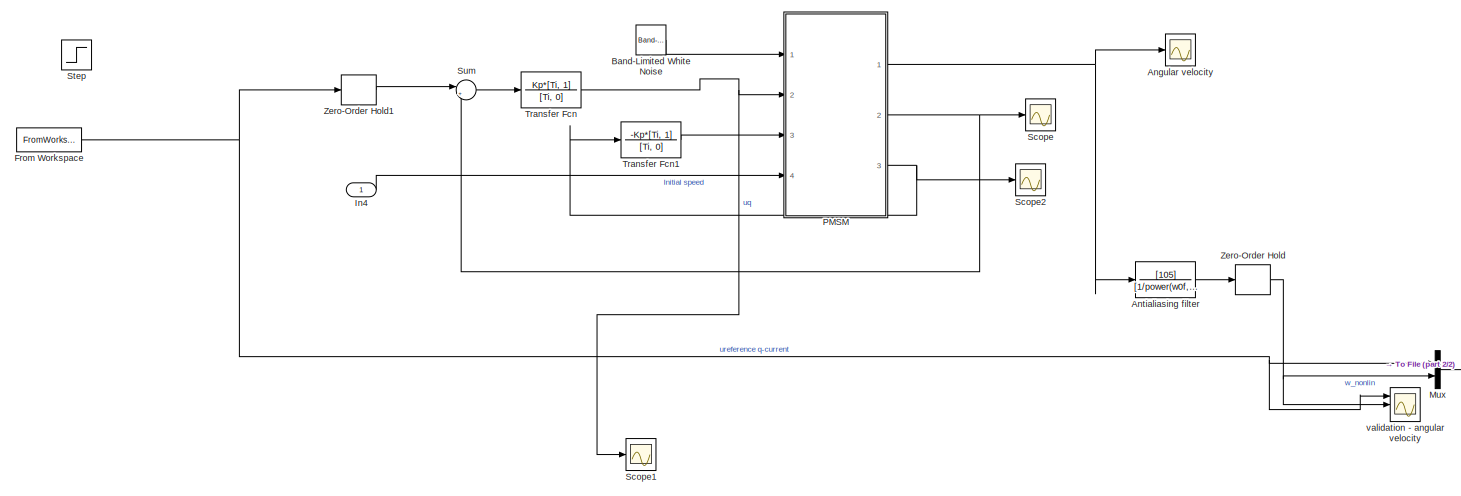
[diagram: root canvas - part 1/2, most of the canvas]
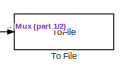
[diagram: root canvas - part 2/2, bottom right region]
MODEL slx_8caa76da7b3e
KIND model
CONFIG AbsTol = auto
CONFIG EnableMultiTasking = off
CONFIG FixedStep = auto
CONFIG MaxStep = auto
CONFIG MinStep = auto
CONFIG RelTol = 1e-3
CONFIG SampleTimeConstraint = Unconstrained
CONFIG SolverName = VariableStepAuto
CONFIG StartTime = 0.0
CONFIG StopTime = 29.9
WORKSPACE source: MATLAB code (in-file)
WORKSPACE np = 4
WORKSPACE phiv = 0.1167
WORKSPACE Kt = 3/2*np*phiv  (= 0.7002)
WORKSPACE f = 2e-5  (= 2e-05)
WORKSPACE J = 1.74e-2  (= 0.0174)
WORKSPACE L = 0.008
WORKSPACE Ld = L  (= 0.008)
WORKSPACE Lq = L  (= 0.008)
WORKSPACE Rs = 1.74
WORKSPACE Kp = 5
WORKSPACE Ki = 250
WORKSPACE Ti = Kp/Ki  (= 0.02)
WORKSPACE h = 1e-1  (= 0.1)
WORKSPACE wN = pi/h  (= 31.4159265359)
WORKSPACE wBf = 0.7*wN  (= 21.9911485751)
WORKSPACE w0f = wBf/2.11  (= 10.4223452963)
BLOCK [Scope] Angular velocity
  Floating = off
  NumInputPorts = 1
  Ports = [1]
  ScopeSpecificationString = Simulink.scopes.TimeScopeBlockCfg('CurrentConfiguration', extmgr.ConfigurationSet(extmgr.Configuration('Core','General UI',true),extmgr.Configuration('Core','Source UI',true),extmgr.Configuration('Sources','WiredSimulink',true,'DataLoggingVariableName','ScopeData1'),extmgr.Configuration('Visuals','Time Domain',true,'SerializedDisplays',{struct('MinYLimReal','-0.11961','MaxYLimReal','1.07649','YLab...<+1412ch>
BLOCK [TransferFcn] Antialiasing filter
  Denominator = [1/power(w0f,4), 10/power(w0f, 3), 45/power(w0f, 2), 105/w0f, 105]
  Numerator = [105]
BLOCK [Reference] Band-Limited White Noise  REF=simulink/Sources/Band-Limited
White Noise
  Ports = [0, 1]
  SourceBlock = simulink/Sources/Band-Limited\nWhite Noise
  SourceProductBaseCode = SL
  SourceType = Band-Limited White Noise.
BLOCK [FromWorkspace] From Workspace
  SampleTime = h
  VariableName = input1
BLOCK [Inport] In4
BLOCK [Mux] Mux
  DisplayOption = bar
  Inputs = 2
  Ports = [2, 1]
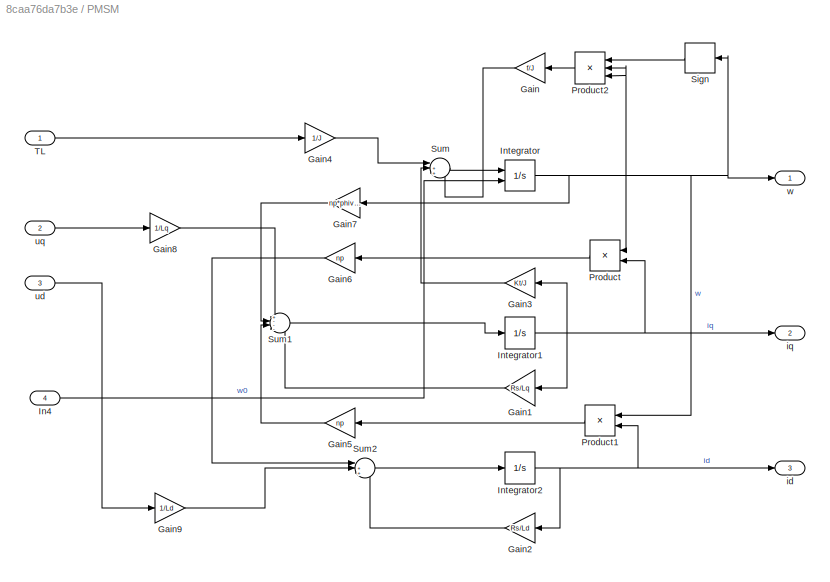
BLOCK [SubSystem] PMSM
  Ports = [4, 3]
  RequestExecContextInheritance = off
BLOCK [Gain] PMSM/Gain
  Gain = f/J
  NameLocation = top
BLOCK [Gain] PMSM/Gain1
  Gain = Rs/Lq
  NameLocation = top
BLOCK [Gain] PMSM/Gain2
  Gain = Rs/Ld
  NameLocation = top
BLOCK [Gain] PMSM/Gain3
  Gain = Kt/J
  NameLocation = top
BLOCK [Gain] PMSM/Gain4
  Gain = 1/J
BLOCK [Gain] PMSM/Gain5
  Gain = np
  NameLocation = top
BLOCK [Gain] PMSM/Gain6
  Gain = np
  NameLocation = top
BLOCK [Gain] PMSM/Gain7
  Gain = np*phiv/Lq
  NameLocation = top
BLOCK [Gain] PMSM/Gain8
  Gain = 1/Lq
BLOCK [Gain] PMSM/Gain9
  Gain = 1/Ld
BLOCK [Inport] PMSM/In4
  Port = 4
BLOCK [Integrator] PMSM/Integrator
  InitialConditionSource = external
  Ports = [2, 1]
BLOCK [Integrator] PMSM/Integrator1
  Ports = [1, 1]
BLOCK [Integrator] PMSM/Integrator2
  Ports = [1, 1]
BLOCK [Product] PMSM/Product
  NameLocation = top
  Ports = [2, 1]
BLOCK [Product] PMSM/Product1
  NameLocation = top
  Ports = [2, 1]
BLOCK [Product] PMSM/Product2
  Inputs = 3
  NameLocation = top
  Ports = [3, 1]
BLOCK [Signum] PMSM/Sign
BLOCK [Sum] PMSM/Sum
  Inputs = |++-
  Ports = [3, 1]
BLOCK [Sum] PMSM/Sum1
  Inputs = +---
  Ports = [4, 1]
BLOCK [Sum] PMSM/Sum2
  Inputs = |++-
  Ports = [3, 1]
BLOCK [Inport] PMSM/TL
BLOCK [Outport] PMSM/id
  Port = 3
  VectorParamsAs1DForOutWhenUnconnected = off
BLOCK [Outport] PMSM/iq
  Port = 2
  VectorParamsAs1DForOutWhenUnconnected = off
BLOCK [Inport] PMSM/ud
  Port = 3
BLOCK [Inport] PMSM/uq
  Port = 2
BLOCK [Outport] PMSM/w
  VectorParamsAs1DForOutWhenUnconnected = off
BLOCK [Scope] Scope
  Floating = off
  NumInputPorts = 1
  Ports = [1]
  ScopeSpecificationString = Simulink.scopes.TimeScopeBlockCfg('CurrentConfiguration', extmgr.ConfigurationSet(extmgr.Configuration('Core','General UI',true),extmgr.Configuration('Core','Source UI',true),extmgr.Configuration('Sources','WiredSimulink',true),extmgr.Configuration('Visuals','Time Domain',true,'SerializedDisplays',{struct('MinYLimReal','-0.11961','MaxYLimReal','1.07649','YLabelReal','','MinYLimMag','0.00000','MaxY...<+1400ch>
BLOCK [Scope] Scope1
  Floating = off
  NumInputPorts = 1
  Ports = [1]
  ScopeSpecificationString = Simulink.scopes.TimeScopeBlockCfg('CurrentConfiguration', extmgr.ConfigurationSet(extmgr.Configuration('Core','General UI',true),extmgr.Configuration('Core','Source UI',true),extmgr.Configuration('Sources','WiredSimulink',true,'DataLoggingVariableName','ScopeData1'),extmgr.Configuration('Visuals','Time Domain',true,'SerializedDisplays',{struct('MinYLimReal','-6793.12415','MaxYLimReal','8736.63306'...<+1383ch>
BLOCK [Scope] Scope2
  Floating = off
  NumInputPorts = 1
  Ports = [1]
  ScopeSpecificationString = Simulink.scopes.TimeScopeBlockCfg('CurrentConfiguration', extmgr.ConfigurationSet(extmgr.Configuration('Core','General UI',true),extmgr.Configuration('Core','Source UI',true),extmgr.Configuration('Sources','WiredSimulink',true,'DataLoggingVariableName','ScopeData2'),extmgr.Configuration('Visuals','Time Domain',true,'SerializedDisplays',{struct('MinYLimReal','-332.87517','MaxYLimReal','709.24093','...<+1407ch>
BLOCK [Step] Step
  After = 100
  SampleTime = 0
BLOCK [Sum] Sum
  Inputs = |+-
  Ports = [2, 1]
BLOCK [ToFile] To File
  Filename = pmsm_sysid_dta.mat
  MatrixName = uy
  Ports = [1]
  SaveFormat = Timeseries
BLOCK [TransferFcn] Transfer Fcn
  Denominator = [Ti, 0]
  Numerator = Kp*[Ti, 1]
BLOCK [TransferFcn] Transfer Fcn1
  Denominator = [Ti, 0]
  Numerator = -Kp*[Ti, 1]
BLOCK [ZeroOrderHold] Zero-Order Hold
  SampleTime = h
BLOCK [ZeroOrderHold] Zero-Order Hold1
  SampleTime = h
BLOCK [Scope] validation - angular velocity 
  Floating = off
  NumInputPorts = 3
  Ports = [3]
  ScopeSpecificationString = Simulink.scopes.TimeScopeBlockCfg('CurrentConfiguration', extmgr.ConfigurationSet(extmgr.Configuration('Core','General UI',true),extmgr.Configuration('Core','Source UI',true),extmgr.Configuration('Sources','WiredSimulink',true,'DataLoggingVariableName','ScopeData1'),extmgr.Configuration('Visuals','Time Domain',true,'SerializedDisplays',{struct('MinYLimReal','-125.00000','MaxYLimReal','125.00000','...<+2566ch>
LINE Antialiasing filter:1 -> Zero-Order Hold:1
LINE Band-Limited White Noise:1 -> PMSM:1
NET From Workspace:1 -> Mux:1, Zero-Order Hold1:1, validation - angular velocity :1
LINE In4:1 -> PMSM:4
LINE Mux:1 -> To File:1
LINE PMSM/Gain1:1 -> PMSM/Sum1:4
LINE PMSM/Gain2:1 -> PMSM/Sum2:3
LINE PMSM/Gain3:1 -> PMSM/Sum:2
LINE PMSM/Gain4:1 -> PMSM/Sum:1
LINE PMSM/Gain5:1 -> PMSM/Sum1:3
LINE PMSM/Gain6:1 -> PMSM/Sum2:1
LINE PMSM/Gain7:1 -> PMSM/Sum1:2
LINE PMSM/Gain8:1 -> PMSM/Sum1:1
LINE PMSM/Gain9:1 -> PMSM/Sum2:2
LINE PMSM/Gain:1 -> PMSM/Sum:3
LINE PMSM/In4:1 -> PMSM/Integrator:2
NET PMSM/Integrator1:1 -> PMSM/Gain1:1, PMSM/Gain3:1, PMSM/Product:2, PMSM/iq:1
NET PMSM/Integrator2:1 -> PMSM/Gain2:1, PMSM/Product1:2, PMSM/id:1
NET PMSM/Integrator:1 -> PMSM/Gain7:1, PMSM/Product1:1, PMSM/Product2:2, PMSM/Product2:3, PMSM/Product:1, PMSM/Sign:1, PMSM/w:1
LINE PMSM/Product1:1 -> PMSM/Gain5:1
LINE PMSM/Product2:1 -> PMSM/Gain:1
LINE PMSM/Product:1 -> PMSM/Gain6:1
LINE PMSM/Sign:1 -> PMSM/Product2:1
LINE PMSM/Sum1:1 -> PMSM/Integrator1:1
LINE PMSM/Sum2:1 -> PMSM/Integrator2:1
LINE PMSM/Sum:1 -> PMSM/Integrator:1
LINE PMSM/TL:1 -> PMSM/Gain4:1
LINE PMSM/ud:1 -> PMSM/Gain9:1
LINE PMSM/uq:1 -> PMSM/Gain8:1
NET PMSM:1 -> Angular velocity:1, Antialiasing filter:1
NET PMSM:2 -> Scope:1, Sum:2
NET PMSM:3 -> Scope2:1, Transfer Fcn1:1
LINE Sum:1 -> Transfer Fcn:1
LINE Transfer Fcn1:1 -> PMSM:3
NET Transfer Fcn:1 -> PMSM:2, Scope1:1
LINE Zero-Order Hold1:1 -> Sum:1
NET Zero-Order Hold:1 -> Mux:2, validation - angular velocity :2
note: NET lines group one-source signal fan-out (src -> all destinations, sorted); 1:1 wires keep LINE
